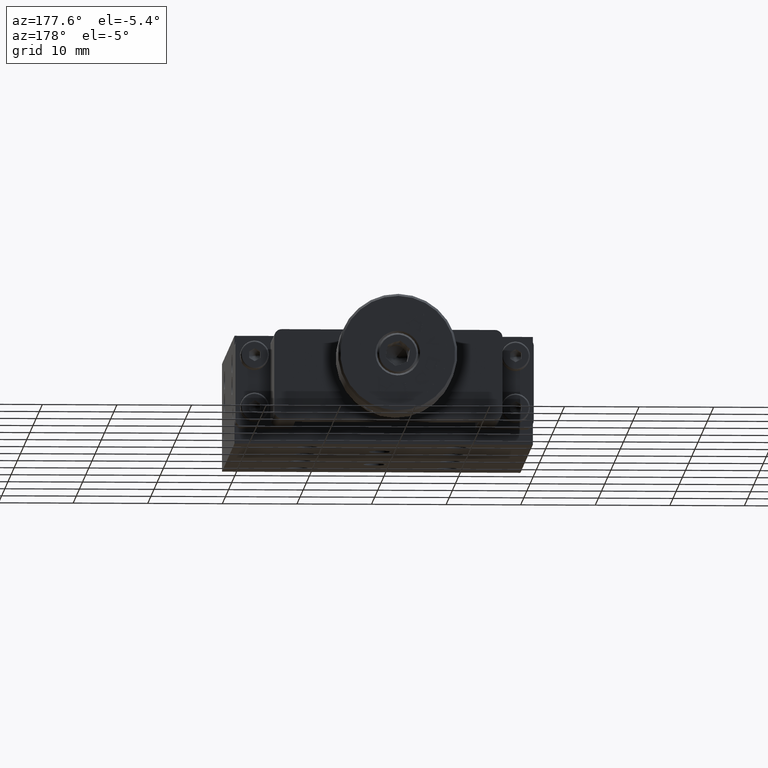
[diagram: clean part render]
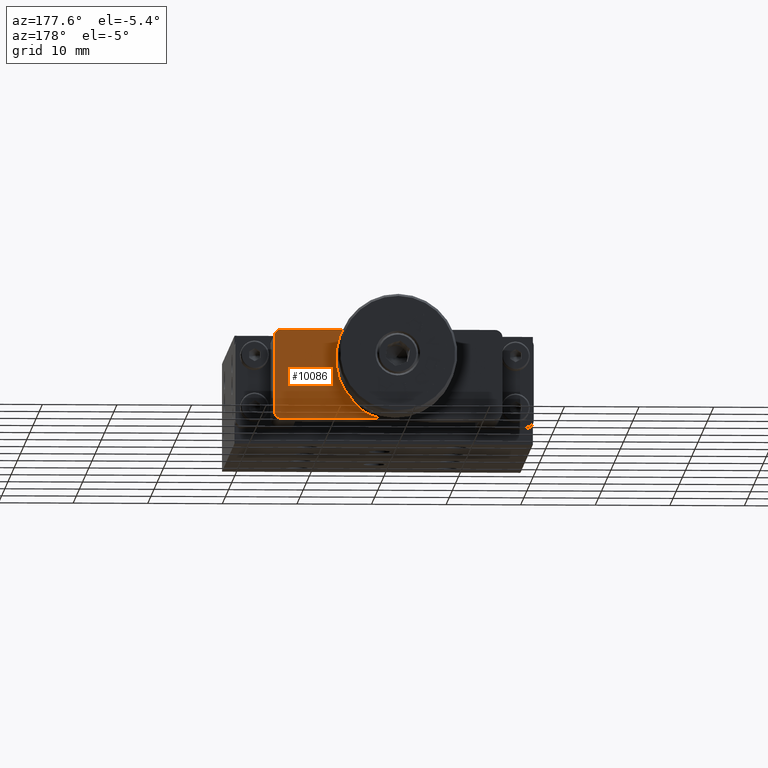
[diagram: same view with one face highlighted and labeled with its STEP entity id]
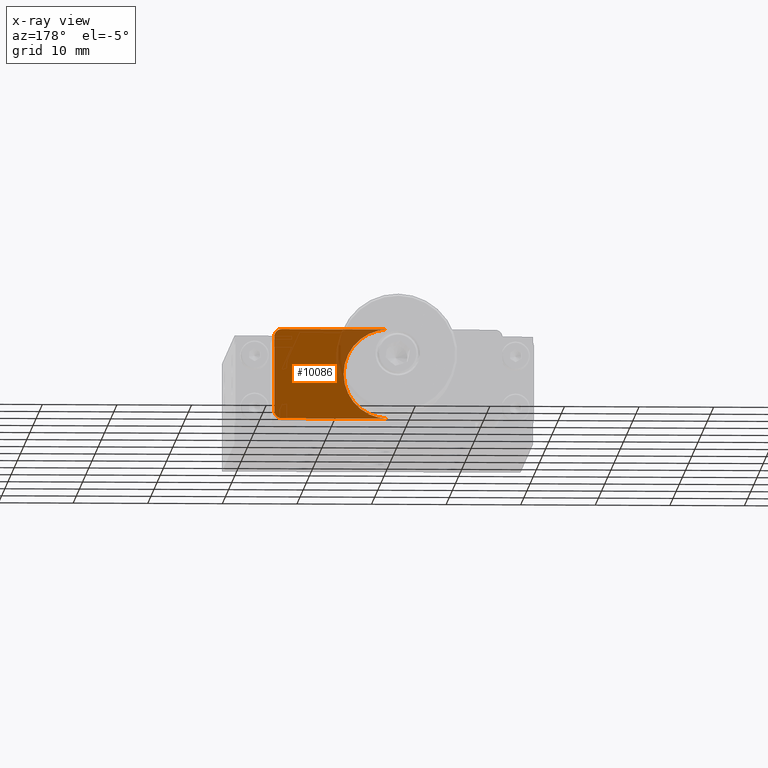
[diagram: x-ray of the same camera — body ghosted, the highlighted face saturated]
A machine part, auxiliary view. The second image highlights one B-rep face of the part: STEP entity #10086.
The next image is the same camera in x-ray: the body ghosted, the highlighted face saturated — about 11% of this face is hidden behind the body in this view.
In plain terms, the highlighted planar face has unit normal (0, 1, 0).
Its self-contained STEP definition (entity closure, byte-faithful):
#682=PLANE('',#10710);
#1111=FACE_OUTER_BOUND('',#1662,.T.);
#1662=EDGE_LOOP('',(#7877,#7878,#7879,#7880,#7881,#7882,#7883));
#2461=LINE('',#16151,#3326);
#2466=LINE('',#16169,#3331);
#2467=LINE('',#16173,#3332);
#3326=VECTOR('',#12331,10.);
#3331=VECTOR('',#12350,10.);
#3332=VECTOR('',#12353,10.);
#3847=CIRCLE('',#10708,1.);
#3849=CIRCLE('',#10711,1.);
#3850=CIRCLE('',#10712,6.);
#3851=CIRCLE('',#10713,6.);
#4576=VERTEX_POINT('',#16148);
#4577=VERTEX_POINT('',#16150);
#4581=VERTEX_POINT('',#16162);
#4583=VERTEX_POINT('',#16168);
#4584=VERTEX_POINT('',#16170);
#4585=VERTEX_POINT('',#16172);
#4586=VERTEX_POINT('',#16174);
#5745=EDGE_CURVE('',#4577,#4576,#2461,.T.);
#5751=EDGE_CURVE('',#4581,#4576,#3847,.T.);
#5754=EDGE_CURVE('',#4583,#4581,#2466,.T.);
#5755=EDGE_CURVE('',#4584,#4583,#3849,.T.);
#5756=EDGE_CURVE('',#4585,#4584,#2467,.T.);
#5757=EDGE_CURVE('',#4586,#4585,#3850,.T.);
#5758=EDGE_CURVE('',#4577,#4586,#3851,.T.);
#7877=ORIENTED_EDGE('',*,*,#5751,.F.);
#7878=ORIENTED_EDGE('',*,*,#5754,.F.);
#7879=ORIENTED_EDGE('',*,*,#5755,.F.);
#7880=ORIENTED_EDGE('',*,*,#5756,.F.);
#7881=ORIENTED_EDGE('',*,*,#5757,.F.);
#7882=ORIENTED_EDGE('',*,*,#5758,.F.);
#7883=ORIENTED_EDGE('',*,*,#5745,.T.);
#10086=ADVANCED_FACE('',(#1111),#682,.T.);
#10708=AXIS2_PLACEMENT_3D('',#16163,#12343,#12344);
#10710=AXIS2_PLACEMENT_3D('',#16167,#12348,#12349);
#10711=AXIS2_PLACEMENT_3D('',#16171,#12351,#12352);
#10712=AXIS2_PLACEMENT_3D('',#16175,#12354,#12355);
#10713=AXIS2_PLACEMENT_3D('',#16176,#12356,#12357);
#12331=DIRECTION('',(1.,-5.55111512312578E-17,-9.93008144079619E-47));
#12343=DIRECTION('center_axis',(-5.55111512312578E-17,-1.,-2.91703841149741E-62));
#12344=DIRECTION('ref_axis',(0.707106781186549,-3.92523114670945E-17,0.707106781186546));
#12348=DIRECTION('center_axis',(5.55111512312578E-17,1.,2.91703841149741E-62));
#12349=DIRECTION('ref_axis',(9.93008144079619E-47,-3.46826866409616E-62,
1.));
#12350=DIRECTION('',(9.93008144079619E-47,-3.46826866409616E-62,1.));
#12351=DIRECTION('center_axis',(-5.55111512312578E-17,-1.,-2.91703841149741E-62));
#12352=DIRECTION('ref_axis',(0.707106781186549,-3.92523114670945E-17,-0.707106781186546));
#12353=DIRECTION('',(1.,-5.55111512312578E-17,-9.93008144079619E-47));
#12354=DIRECTION('center_axis',(5.55111512312578E-17,1.,2.91703841149741E-62));
#12355=DIRECTION('ref_axis',(-1.,5.55111512312578E-17,9.93008144079619E-47));
#12356=DIRECTION('center_axis',(5.55111512312578E-17,1.,2.91703841149741E-62));
#12357=DIRECTION('ref_axis',(-1.,5.55111512312578E-17,9.93008144079619E-47));
#16148=CARTESIAN_POINT('',(25.6,55.,8.5));
#16150=CARTESIAN_POINT('',(11.3000000000001,55.,8.5));
#16151=CARTESIAN_POINT('',(17.3000000000001,55.,8.5));
#16162=CARTESIAN_POINT('',(26.6,55.,7.5));
#16163=CARTESIAN_POINT('Origin',(25.6,55.,7.5));
#16167=CARTESIAN_POINT('Origin',(17.3000000000001,55.,-3.5));
#16168=CARTESIAN_POINT('',(26.6,55.,-2.5));
#16169=CARTESIAN_POINT('',(26.6,55.,-3.5));
#16170=CARTESIAN_POINT('',(25.6,55.,-3.5));
#16171=CARTESIAN_POINT('Origin',(25.6,55.,-2.5));
#16172=CARTESIAN_POINT('',(11.3000000000001,55.,-3.5));
#16173=CARTESIAN_POINT('',(11.3,55.,-3.5));
#16174=CARTESIAN_POINT('',(17.3000000000001,55.,2.5));
#16175=CARTESIAN_POINT('Origin',(11.3000000000001,55.,2.5));
#16176=CARTESIAN_POINT('Origin',(11.3000000000001,55.,2.5));